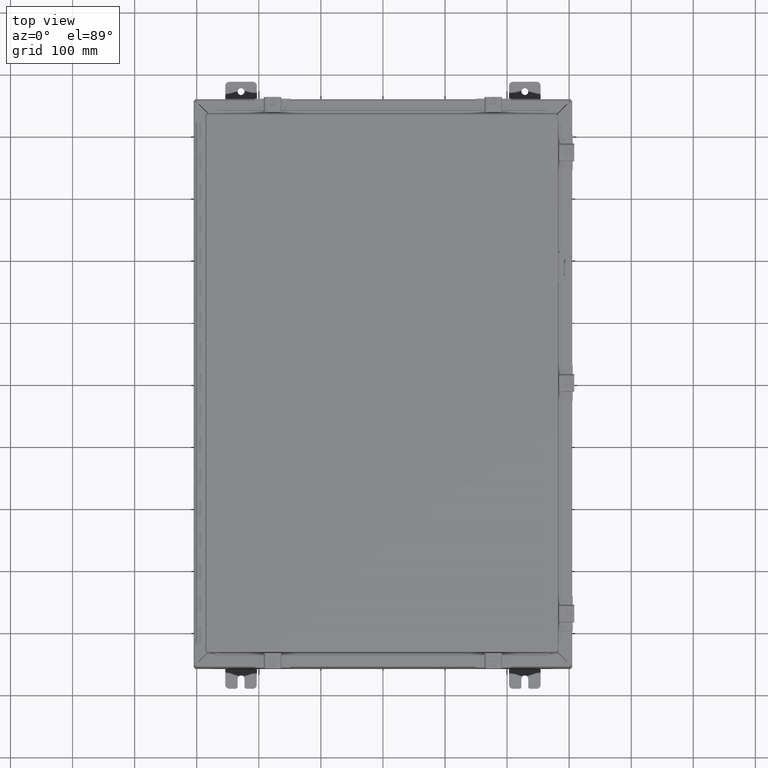
[diagram: clean part render]
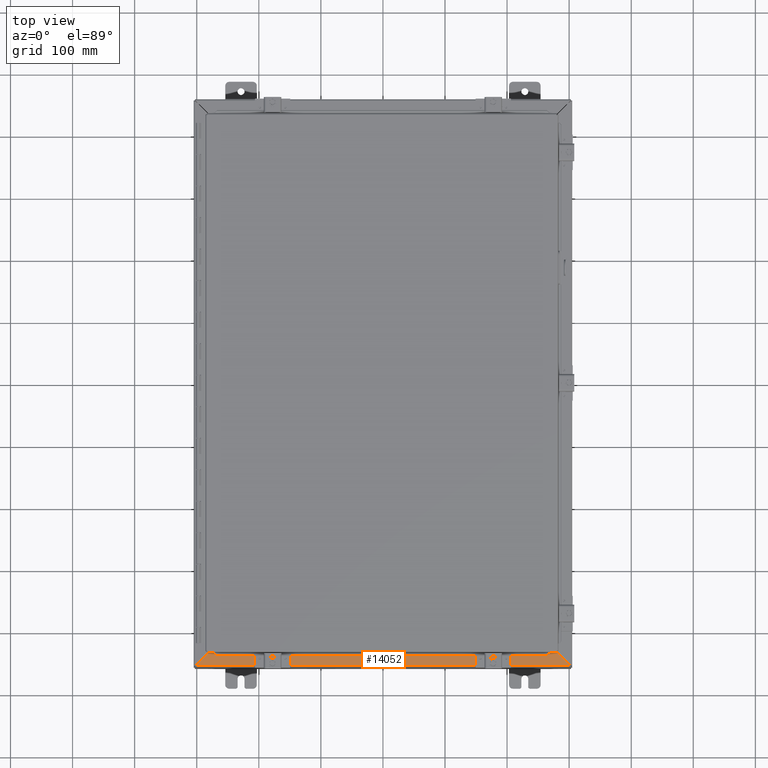
[diagram: same view with one face highlighted and labeled with its STEP entity id]
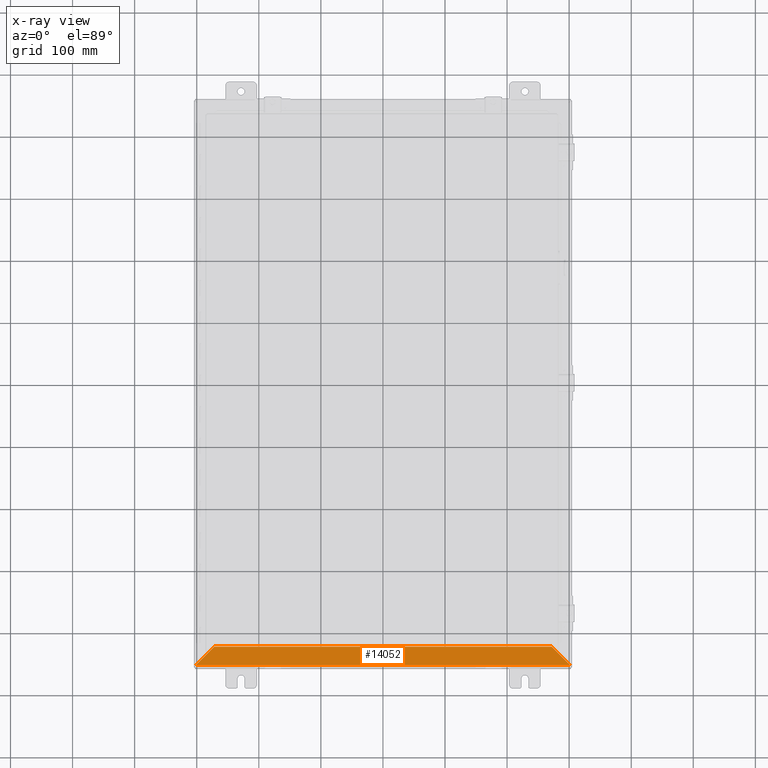
[diagram: x-ray of the same camera — body ghosted, the highlighted face saturated]
A machine part, top view. The second image highlights one B-rep face of the part: STEP entity #14052.
The next image is the same camera in x-ray: the body ghosted, the highlighted face saturated — about 0% of this face is hidden behind the body in this view.
In plain terms, the highlighted planar face has unit normal (0, 0, -1).
Its self-contained STEP definition (entity closure, byte-faithful):
#1312=PLANE('',#14907);
#1780=FACE_OUTER_BOUND('',#2580,.T.);
#2580=EDGE_LOOP('',(#10116,#10117,#10118,#10119));
#3477=LINE('',#20532,#4786);
#3479=LINE('',#20571,#4788);
#3480=LINE('',#20572,#4789);
#3481=LINE('',#20573,#4790);
#4786=VECTOR('',#16397,21.4081740981923);
#4788=VECTOR('',#16401,23.7371740981923);
#4789=VECTOR('',#16402,1.64685169338347);
#4790=VECTOR('',#16403,1.64685169338346);
#6597=VERTEX_POINT('',#20530);
#6598=VERTEX_POINT('',#20531);
#6605=VERTEX_POINT('',#20569);
#6606=VERTEX_POINT('',#20570);
#7969=EDGE_CURVE('',#6597,#6598,#3477,.T.);
#7977=EDGE_CURVE('',#6605,#6606,#3479,.T.);
#7978=EDGE_CURVE('',#6597,#6606,#3480,.T.);
#7979=EDGE_CURVE('',#6605,#6598,#3481,.T.);
#10116=ORIENTED_EDGE('',*,*,#7977,.T.);
#10117=ORIENTED_EDGE('',*,*,#7978,.F.);
#10118=ORIENTED_EDGE('',*,*,#7969,.T.);
#10119=ORIENTED_EDGE('',*,*,#7979,.F.);
#14052=ADVANCED_FACE('',(#1780),#1312,.F.);
#14907=AXIS2_PLACEMENT_3D('',#20568,#16399,#16400);
#16397=DIRECTION('',(-1.,-5.17591843571229E-16,-1.4508085307558E-17));
#16399=DIRECTION('center_axis',(1.45080853075377E-17,3.91781124762125E-14,
-1.));
#16400=DIRECTION('ref_axis',(-2.47614548499227E-16,1.,4.06075173486898E-14));
#16401=DIRECTION('',(1.,3.641733962289E-16,1.4508085307552E-17));
#16402=DIRECTION('',(0.707106781186547,-0.707106781186548,-2.78222018566177E-14));
#16403=DIRECTION('',(0.707106781186548,0.707106781186547,2.76747664498304E-14));
#20530=CARTESIAN_POINT('',(10.7040870490961,-16.73025,8.00000000000005));
#20531=CARTESIAN_POINT('',(-10.7040870490961,-16.7302500000001,8.00000000000004));
#20532=CARTESIAN_POINT('',(-5.35204352454807,-16.7302500000001,8.00000000000004));
#20568=CARTESIAN_POINT('Origin',(1.04100469801545E-15,-17.329274321345,
8.00000000000002));
#20569=CARTESIAN_POINT('',(-11.8685870490961,-17.89475,8.));
#20570=CARTESIAN_POINT('',(11.8685870490961,-17.89475,8.));
#20571=CARTESIAN_POINT('',(6.12832163649309E-16,-17.89475,8.));
#20572=CARTESIAN_POINT('',(11.8685870490961,-17.89475,8.));
#20573=CARTESIAN_POINT('',(-11.8685870490961,-17.8947500000001,8.));